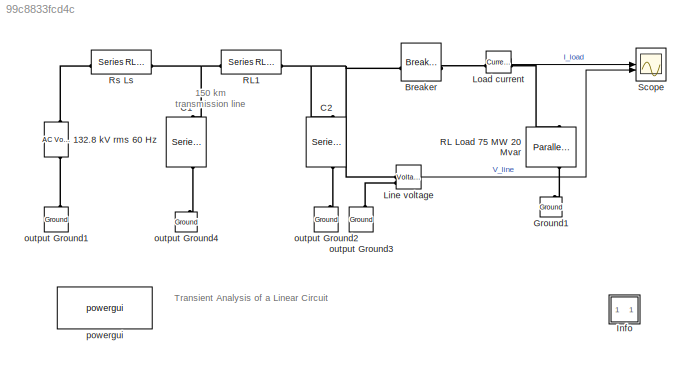
MODEL slx_99c8833fcd4c
KIND model
CONFIG AbsTol = auto
CONFIG EnableMultiTasking = off
CONFIG FixedStep = auto
CONFIG MaxStep = auto
CONFIG MinStep = auto
CONFIG RelTol = 1e-4
CONFIG SampleTimeConstraint = Unconstrained
CONFIG SolverName = ode23t
CONFIG StartTime = 0.0
CONFIG StopTime = 0.2
BLOCK [Reference] 132.8 kV rms 60 Hz  REF=spsACVoltageSourceLib/AC Voltage Source
  AttributesFormatString = \n
  Description = source block
  NameLocation = right
  SourceBlock = spsACVoltageSourceLib/AC Voltage Source
  SourceType = AC Voltage Source
BLOCK [Reference] Breaker  REF=spsBreakerLib/Breaker
  AttributesFormatString = \n
  SourceBlock = spsBreakerLib/Breaker
  SourceType = Breaker
BLOCK [Reference] C1  REF=spsSeriesRLCBranchLib/Series RLC Branch
  AttributesFormatString = \n
  NameLocation = left
  SourceBlock = spsSeriesRLCBranchLib/Series RLC Branch
  SourceType = Series RLC Branch
BLOCK [Reference] C2  REF=spsSeriesRLCBranchLib/Series RLC Branch
  AttributesFormatString = \n
  NameLocation = left
  SourceBlock = spsSeriesRLCBranchLib/Series RLC Branch
  SourceType = Series RLC Branch
BLOCK [Reference] Ground1  REF=spsGroundLib/Ground
  AttributesFormatString = \n
  NameLocation = right
  SourceBlock = spsGroundLib/Ground
  SourceType = Ground
BLOCK [SubSystem] Info
  OpenFcn = showExample("simscapeelectricalsps/TransientAnalysisExample")
BLOCK [Reference] Line voltage  REF=spsVoltageMeasurementLib/Voltage Measurement
  AttributesFormatString = \n
  SourceBlock = spsVoltageMeasurementLib/Voltage Measurement
  SourceType = Voltage Measurement
  Tag = PoWeRsYsTeMmEaSuReMeNt
BLOCK [Reference] Load current  REF=spsCurrentMeasurementLib/Current Measurement
  AttributesFormatString = \n
  SourceBlock = spsCurrentMeasurementLib/Current Measurement
  SourceType = Current Measurement
  Tag = PoWeRsYsTeMmEaSuReMeNt
BLOCK [Reference] RL Load 75 MW 20 Mvar  REF=spsParallelRLCLoadLib/Parallel RLC Load
  AttributesFormatString = \n
  NameLocation = left
  SourceBlock = spsParallelRLCLoadLib/Parallel RLC Load
  SourceType = Parallel RLC Load
BLOCK [Reference] RL1  REF=spsSeriesRLCBranchLib/Series RLC Branch
  AttributesFormatString = \n
  SourceBlock = spsSeriesRLCBranchLib/Series RLC Branch
  SourceType = Series RLC Branch
BLOCK [Reference] Rs       Ls  REF=spsSeriesRLCBranchLib/Series RLC Branch
  AttributesFormatString = \n
  SourceBlock = spsSeriesRLCBranchLib/Series RLC Branch
  SourceType = Series RLC Branch
BLOCK [Scope] Scope
  Floating = off
  NumInputPorts = 2
  ScopeSpecificationString = Simulink.scopes.TimeScopeBlockCfg('CurrentConfiguration', extmgr.ConfigurationSet(extmgr.Configuration('Core','General UI',true),extmgr.Configuration('Core','Source UI',true),extmgr.Configuration('Sources','WiredSimulink',true,'DataLoggingDecimateData',true,'DataLoggingDecimation','1'),extmgr.Configuration('Visuals','Time Domain',true,'SerializedDisplays',{struct('MinYLimReal','-91.30826','MaxYLim...<+2281ch>
BLOCK [Reference] output Ground1  REF=spsGroundLib/Ground
  AttributesFormatString = \n
  NameLocation = right
  SourceBlock = spsGroundLib/Ground
  SourceType = Ground
BLOCK [Reference] output Ground2  REF=spsGroundLib/Ground
  AttributesFormatString = \n
  NameLocation = right
  SourceBlock = spsGroundLib/Ground
  SourceType = Ground
BLOCK [Reference] output Ground3  REF=spsGroundLib/Ground
  AttributesFormatString = \n
  NameLocation = right
  SourceBlock = spsGroundLib/Ground
  SourceType = Ground
BLOCK [Reference] output Ground4  REF=spsGroundLib/Ground
  AttributesFormatString = \n
  NameLocation = right
  SourceBlock = spsGroundLib/Ground
  SourceType = Ground
BLOCK [Reference] powergui  REF=spspowerguiLib/powergui
  Priority = 2
  SourceBlock = spspowerguiLib/powergui
  SourceType = PSB option menu block
ANNOTATION (root): 150 km transmission line
ANNOTATION (root): Transient Analysis of a Linear Circuit
LINE Line voltage:1 -> Scope:2
LINE Load current:1 -> Scope:1
PLINE 132.8 kV rms 60 Hz:LConn1 -- output Ground1:LConn1
PLINE 132.8 kV rms 60 Hz:RConn1 -- Rs       Ls:LConn1
PNET net1: Breaker:LConn1 -- C2:LConn1 -- Line voltage:LConn1 -- RL1:RConn1
PLINE Breaker:RConn1 -- Load current:LConn1
PNET net2: C1:LConn1 -- RL1:LConn1 -- Rs       Ls:RConn1
PLINE C1:RConn1 -- output Ground4:LConn1
PLINE C2:RConn1 -- output Ground2:LConn1
PLINE Ground1:LConn1 -- RL Load 75 MW 20 Mvar:RConn1
PLINE Line voltage:LConn2 -- output Ground3:LConn1
PLINE Load current:RConn1 -- RL Load 75 MW 20 Mvar:LConn1
note: PNET lines group multi-terminal physical nets as a canonical sorted terminal list (undirected conserving connections); 2-terminal nets keep the pairwise PLINE form
